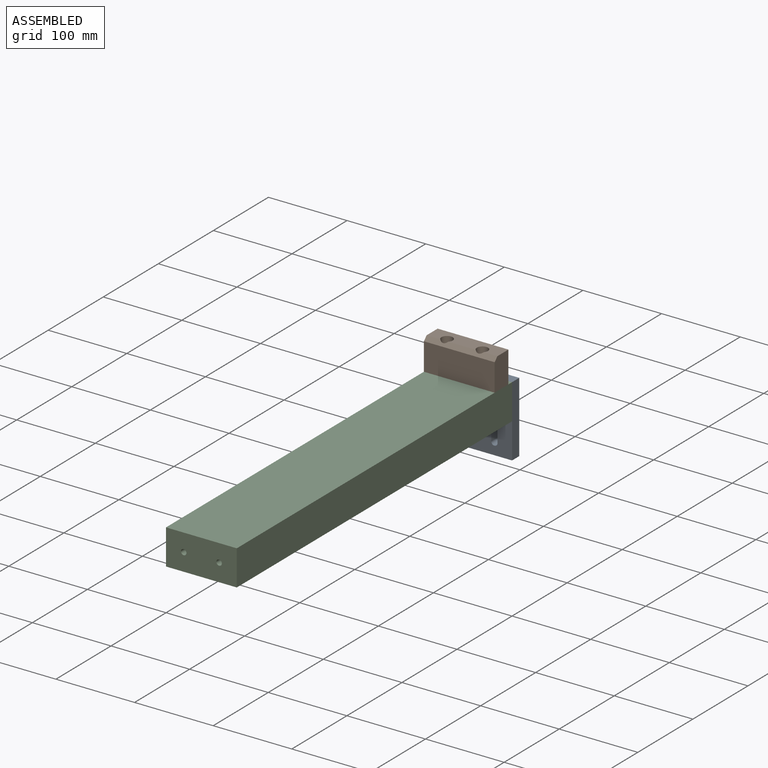
[diagram: assembled view]
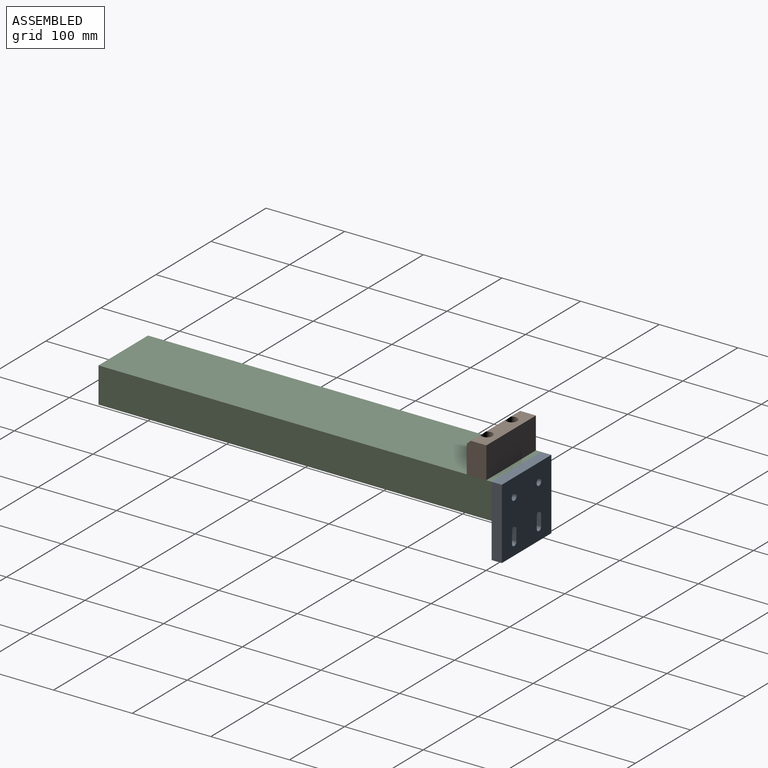
[diagram: assembled view, second angle]
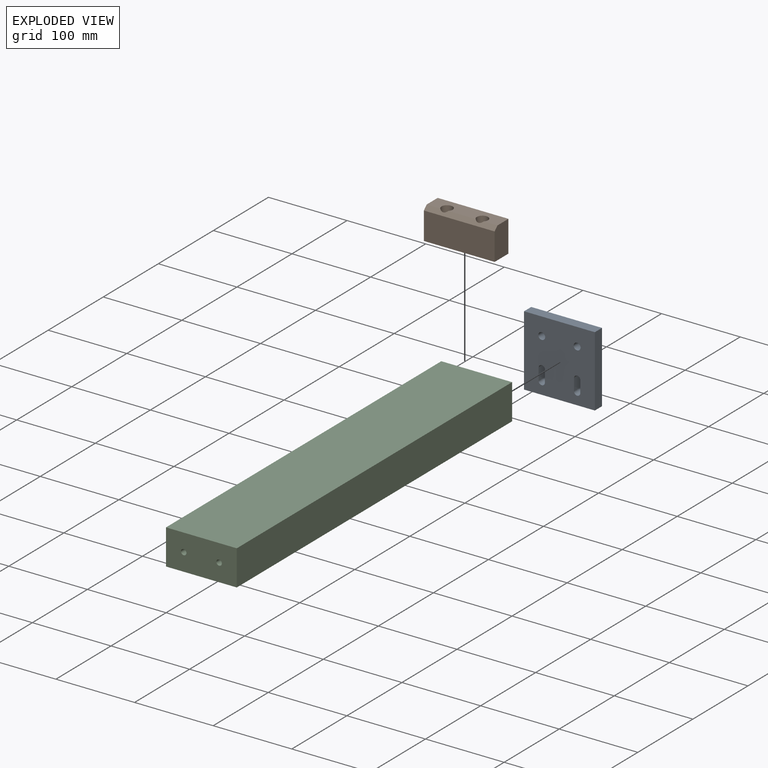
[diagram: exploded view]
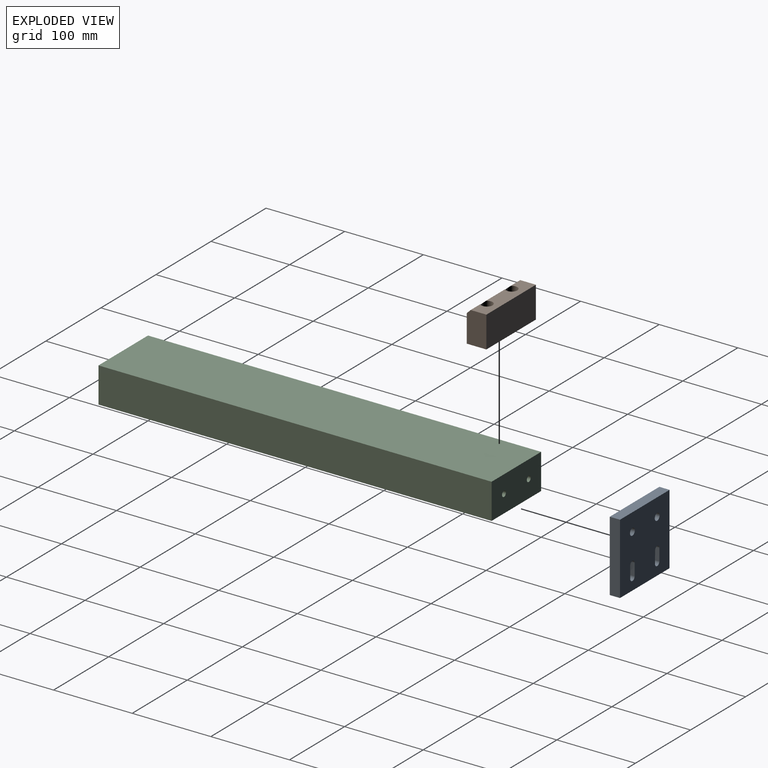
[diagram: exploded view, second angle]
ASSEMBLY  parts=3 mates=2
PART A: 16 faces, bbox 90x13x90 mm
  f0: plane 90x90mm, normal (0,-1,0), area 7639mm2, adj f2,f3,f4,f5,f6,f7,f8,f9
  f1: plane 90x90mm, normal (0,1,0), area 7639mm2, adj f2,f3,f4,f5,f6,f7,f8,f9
  f2: plane 90x13mm, normal (-1,0,0), area 1170mm2, adj f0,f1,f3,f5
  f3: plane 90x13mm, normal (0,0,-1), area 1170mm2, adj f0,f1,f2,f4
  f4: plane 90x13mm, normal (1,0,0), area 1170mm2, adj f0,f1,f3,f5
  f5: plane 90x13mm, normal (0,0,1), area 1170mm2, adj f0,f1,f2,f4
  f6: plane 14.49x13mm, normal (1,0,0), area 188.4mm2, adj f0,f1,f7,f9
  f7: cylinder r=4mm len=13mm, axis (0,-1,0), area 169.9mm2, adj f0,f1,f6,f8
  f8: plane 15x13mm, normal (-1,0,0), area 195mm2, adj f0,f1,f7,f9
  f9: cylinder r=4mm len=13mm, axis (0,-1,0), area 163.5mm2, adj f0,f1,f6,f8
  f10: cylinder r=4mm len=13mm, axis (0,-1,0), area 172.6mm2, adj f0,f1,f11,f13
  f11: plane 15x13mm, normal (1,0,0), area 195mm2, adj f0,f1,f10,f12
  f12: cylinder r=4mm len=13mm, axis (0,-1,0), area 172.6mm2, adj f0,f1,f11,f13
  f13: plane 13.58x13mm, normal (-1,0,0), area 176.6mm2, adj f0,f1,f10,f12
  f14: cylinder r=4.4mm len=13mm, axis (0,-1,0), area 359.4mm2, adj f0,f1
  f15: cylinder r=4.4mm len=13mm, axis (0,-1,0), area 359.4mm2, adj f0,f1
PART B: 13 faces, bbox 90x40x25 mm
  f0: plane 90x35mm, normal (0,0,1), area 3150mm2, adj f1,f3,f5,f12
  f1: plane 40x25mm, normal (-1,0,0), area 987.5mm2, adj f0,f2,f4,f5,f12
  f2: plane 90x40mm, normal (0,0,-1), area 3600mm2, adj f1,f3,f4,f5
  f3: plane 40x25mm, normal (1,0,0), area 987.5mm2, adj f0,f2,f4,f5,f12
  f4: plane 90x20mm, normal (0,-1,0), area 1510.8mm2, adj f1,f2,f3,f8,f11,f12
  f5: plane 90x25mm, normal (0,1,0), area 2128.4mm2, adj f0,f1,f2,f3,f6,f9
  f6: cylinder r=4.4mm len=20mm, axis (0,-1,0), area 552.9mm2, adj f5,f7
  f7: plane 14.25x14.25mm, normal (0,-1,0), area 98.7mm2, adj f6,f8
  f8: cylinder r=7.12mm len=20mm, axis (0,-1,0), area 879.5mm2, adj f4,f7,f12
  f9: cylinder r=4.4mm len=20mm, axis (0,-1,0), area 552.9mm2, adj f5,f10
  f10: plane 14.25x14.25mm, normal (0,-1,0), area 98.7mm2, adj f9,f11
  f11: cylinder r=7.12mm len=20mm, axis (0,-1,0), area 879.5mm2, adj f4,f10,f12
  f12: plane 90x5mm, normal (0,-0.71,0.71), area 594.3mm2, adj f0,f1,f3,f4,f8,f11
PART C: 8 faces, bbox 90x500x45 mm
  f0: plane 500x90mm, normal (0,0,1), area 45000mm2, adj f1,f3,f4,f5
  f1: plane 500x45mm, normal (-1,0,0), area 22500mm2, adj f0,f2,f4,f5
  f2: plane 500x90mm, normal (0,0,-1), area 45000mm2, adj f1,f3,f4,f5
  f3: plane 500x45mm, normal (1,0,0), area 22500mm2, adj f0,f2,f4,f5
  f4: plane 90x45mm, normal (0,-1,0), area 3973mm2, adj f0,f1,f2,f3,f6,f7
  f5: plane 90x45mm, normal (0,1,0), area 3973mm2, adj f0,f1,f2,f3,f6,f7
  f6: cylinder r=3.5mm len=500mm, axis (0,1,0), area 10995.6mm2, adj f4,f5
  f7: cylinder r=3.5mm len=500mm, axis (0,1,0), area 10995.6mm2, adj f4,f5
PLACE A t=(0,13,45)mm
PLACE B rot(axis=(0,-0.71,0.71),180deg) t=(90,-6.64,45)mm
PLACE C at identity
MATE planar B.f5 <-> C.f0  axis (0,0,-1) through (45,-19,45)mm
MATE fastened A.f14 <-> C.f7  axis (0,-1,0) through (22.5,0,22.5)mm
